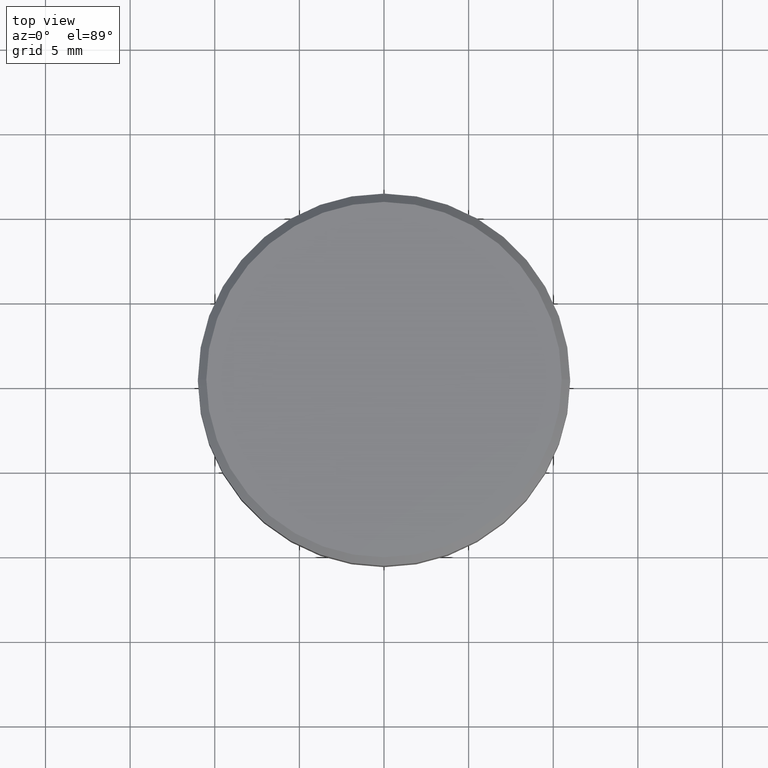
[diagram: clean part render]
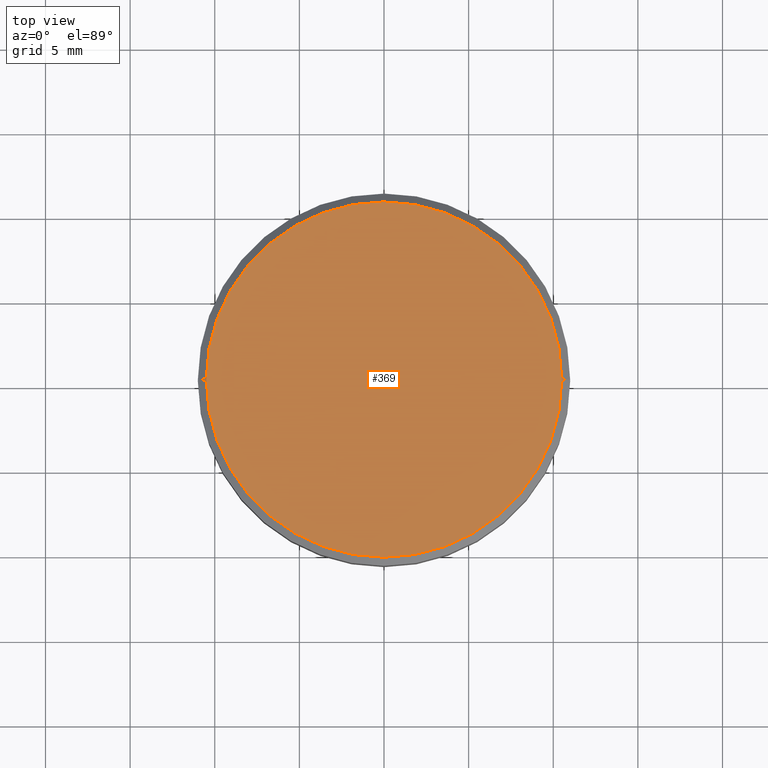
[diagram: same view with one face highlighted and labeled with its STEP entity id]
A machine part, top view. The second image highlights one B-rep face of the part: STEP entity #369.
In plain terms, the highlighted planar face has unit normal (0, -0, 1).
Its self-contained STEP definition (entity closure, byte-faithful):
#74 = CARTESIAN_POINT ( 'NONE',  ( -10.49999999999999822, 0.000000000000000000, 0.000000000000000000 ) ) ;
#79 = DIRECTION ( 'NONE',  ( -0.000000000000000000, -0.000000000000000000, 1.000000000000000000 ) ) ;
#82 = AXIS2_PLACEMENT_3D ( 'NONE', #374, #79, #407 ) ;
#84 = VERTEX_POINT ( 'NONE', #260 ) ;
#95 = DIRECTION ( 'NONE',  ( 1.000000000000000000, 0.000000000000000000, 0.000000000000000000 ) ) ;
#98 = AXIS2_PLACEMENT_3D ( 'NONE', #230, #282, #95 ) ;
#99 = ORIENTED_EDGE ( 'NONE', *, *, #210, .T. ) ;
#103 = EDGE_CURVE ( 'NONE', #84, #175, #197, .T. ) ;
#128 = PLANE ( 'NONE',  #98 ) ;
#129 = FACE_OUTER_BOUND ( 'NONE', #251, .T. ) ;
#175 = VERTEX_POINT ( 'NONE', #74 ) ;
#179 = ORIENTED_EDGE ( 'NONE', *, *, #103, .T. ) ;
#197 = CIRCLE ( 'NONE', #234, 10.49999999999999822 ) ;
#210 = EDGE_CURVE ( 'NONE', #175, #84, #350, .T. ) ;
#230 = CARTESIAN_POINT ( 'NONE',  ( 0.000000000000000000, 0.000000000000000000, 0.000000000000000000 ) ) ;
#234 = AXIS2_PLACEMENT_3D ( 'NONE', #244, #371, #366 ) ;
#244 = CARTESIAN_POINT ( 'NONE',  ( 0.000000000000000000, 0.000000000000000000, 0.000000000000000000 ) ) ;
#251 = EDGE_LOOP ( 'NONE', ( #99, #179 ) ) ;
#260 = CARTESIAN_POINT ( 'NONE',  ( 10.49999999999999822, 1.316495309083404420E-15, 0.000000000000000000 ) ) ;
#282 = DIRECTION ( 'NONE',  ( 0.000000000000000000, -0.000000000000000000, 1.000000000000000000 ) ) ;
#350 = CIRCLE ( 'NONE', #82, 10.49999999999999822 ) ;
#366 = DIRECTION ( 'NONE',  ( 1.000000000000000000, 0.000000000000000000, 0.000000000000000000 ) ) ;
#369 = ADVANCED_FACE ( 'NONE', ( #129 ), #128, .T. ) ;
#371 = DIRECTION ( 'NONE',  ( -0.000000000000000000, -0.000000000000000000, 1.000000000000000000 ) ) ;
#374 = CARTESIAN_POINT ( 'NONE',  ( 0.000000000000000000, 0.000000000000000000, 0.000000000000000000 ) ) ;
#407 = DIRECTION ( 'NONE',  ( 1.000000000000000000, 0.000000000000000000, 0.000000000000000000 ) ) ;